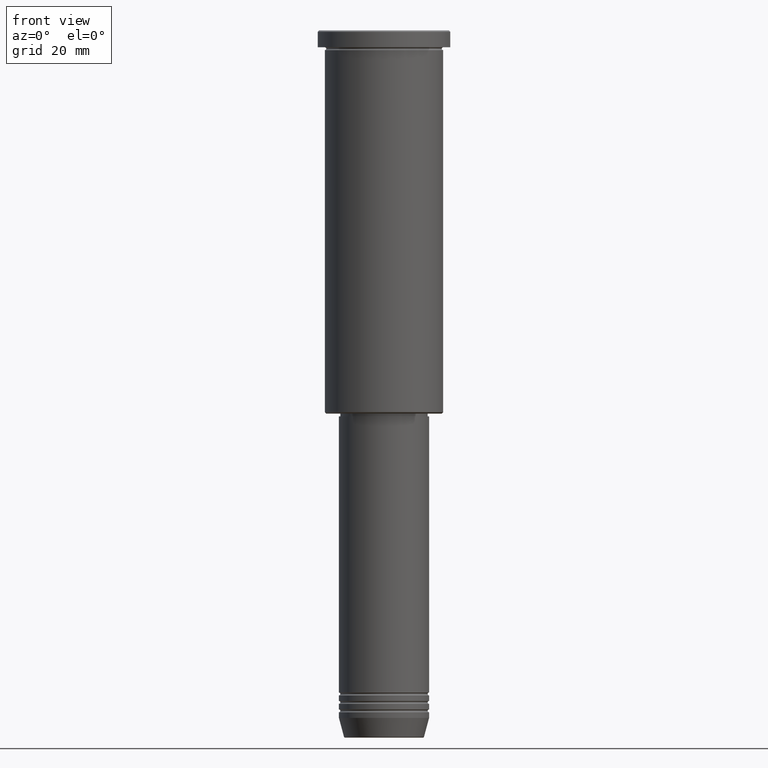
[diagram: clean part render]
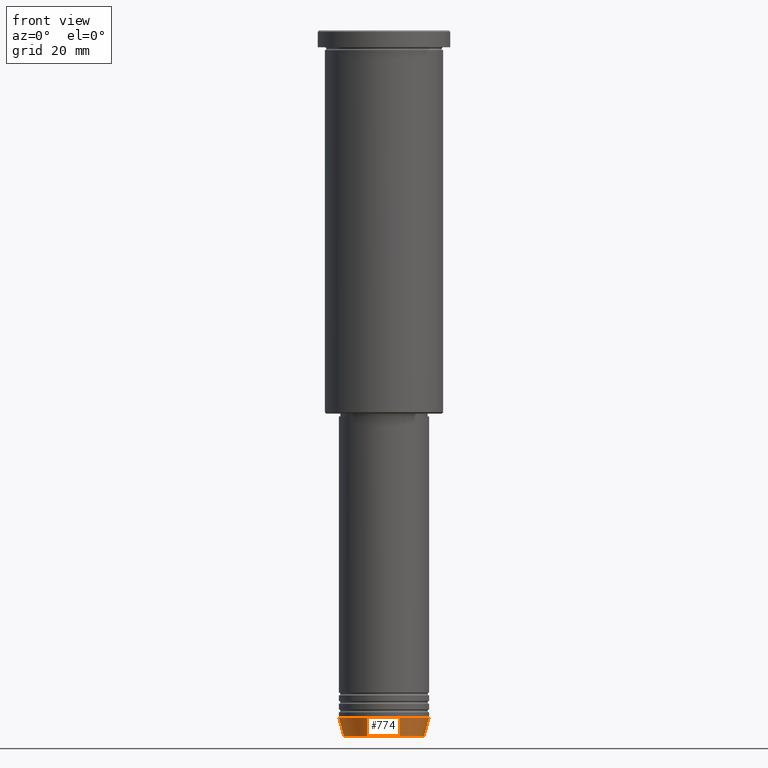
[diagram: same view with one face highlighted and labeled with its STEP entity id]
A machine part, front view. The second image highlights one B-rep face of the part: STEP entity #774.
In plain terms, the highlighted conical surface has half-angle 15 deg.
Its self-contained STEP definition (entity closure, byte-faithful):
#28 = CARTESIAN_POINT ( 'NONE',  ( -16.00000000000000000, 1.959434878635765131E-15, -244.0000000000000284 ) ) ;
#36 = CARTESIAN_POINT ( 'NONE',  ( 0.000000000000000000, 0.000000000000000000, -244.0000000000000284 ) ) ;
#47 = FACE_OUTER_BOUND ( 'NONE', #737, .T. ) ;
#58 = CIRCLE ( 'NONE', #474, 16.00000000000000000 ) ;
#174 = VERTEX_POINT ( 'NONE', #936 ) ;
#215 = VERTEX_POINT ( 'NONE', #823 ) ;
#232 = DIRECTION ( 'NONE',  ( 1.000000000000000000, 0.000000000000000000, 0.000000000000000000 ) ) ;
#242 = DIRECTION ( 'NONE',  ( -0.000000000000000000, -0.000000000000000000, 1.000000000000000000 ) ) ;
#316 = DIRECTION ( 'NONE',  ( -0.000000000000000000, -0.000000000000000000, 1.000000000000000000 ) ) ;
#389 = ORIENTED_EDGE ( 'NONE', *, *, #829, .T. ) ;
#401 = LINE ( 'NONE', #28, #1084 ) ;
#411 = DIRECTION ( 'NONE',  ( 1.000000000000000000, 0.000000000000000000, 0.000000000000000000 ) ) ;
#435 = CONICAL_SURFACE ( 'NONE', #948, 16.00000000000000000, 0.2617993877991500740 ) ;
#459 = CARTESIAN_POINT ( 'NONE',  ( -14.22365507213719660, 1.850665122131323731E-15, -250.6294095225512422 ) ) ;
#474 = AXIS2_PLACEMENT_3D ( 'NONE', #36, #507, #764 ) ;
#494 = CARTESIAN_POINT ( 'NONE',  ( -16.00000000000000000, 1.959434878635765131E-15, -244.0000000000000284 ) ) ;
#505 = DIRECTION ( 'NONE',  ( -0.2588190451025213501, 3.169619151431772337E-17, 0.9659258262890680902 ) ) ;
#507 = DIRECTION ( 'NONE',  ( -0.000000000000000000, -0.000000000000000000, 1.000000000000000000 ) ) ;
#541 = CARTESIAN_POINT ( 'NONE',  ( 16.00000000000000000, 0.000000000000000000, -244.0000000000000284 ) ) ;
#591 = CIRCLE ( 'NONE', #720, 14.22365507213719660 ) ;
#630 = VERTEX_POINT ( 'NONE', #459 ) ;
#660 = LINE ( 'NONE', #541, #780 ) ;
#720 = AXIS2_PLACEMENT_3D ( 'NONE', #1053, #316, #232 ) ;
#737 = EDGE_LOOP ( 'NONE', ( #860, #389, #1014, #996 ) ) ;
#755 = CARTESIAN_POINT ( 'NONE',  ( 0.000000000000000000, 0.000000000000000000, -244.0000000000000284 ) ) ;
#764 = DIRECTION ( 'NONE',  ( 1.000000000000000000, 0.000000000000000000, 0.000000000000000000 ) ) ;
#774 = ADVANCED_FACE ( 'NONE', ( #47 ), #435, .T. ) ;
#780 = VECTOR ( 'NONE', #902, 1000.000000000000000 ) ;
#784 = VERTEX_POINT ( 'NONE', #494 ) ;
#823 = CARTESIAN_POINT ( 'NONE',  ( 16.00000000000000000, 0.000000000000000000, -244.0000000000000284 ) ) ;
#829 = EDGE_CURVE ( 'NONE', #630, #174, #591, .T. ) ;
#844 = EDGE_CURVE ( 'NONE', #784, #215, #58, .T. ) ;
#860 = ORIENTED_EDGE ( 'NONE', *, *, #1149, .F. ) ;
#902 = DIRECTION ( 'NONE',  ( 0.2588190451025213501, 0.000000000000000000, 0.9659258262890680902 ) ) ;
#936 = CARTESIAN_POINT ( 'NONE',  ( 14.22365507213719660, 0.000000000000000000, -250.6294095225512422 ) ) ;
#948 = AXIS2_PLACEMENT_3D ( 'NONE', #755, #242, #411 ) ;
#996 = ORIENTED_EDGE ( 'NONE', *, *, #844, .F. ) ;
#1014 = ORIENTED_EDGE ( 'NONE', *, *, #1127, .T. ) ;
#1053 = CARTESIAN_POINT ( 'NONE',  ( 0.000000000000000000, 0.000000000000000000, -250.6294095225512422 ) ) ;
#1084 = VECTOR ( 'NONE', #505, 1000.000000000000000 ) ;
#1127 = EDGE_CURVE ( 'NONE', #174, #215, #660, .T. ) ;
#1149 = EDGE_CURVE ( 'NONE', #630, #784, #401, .T. ) ;